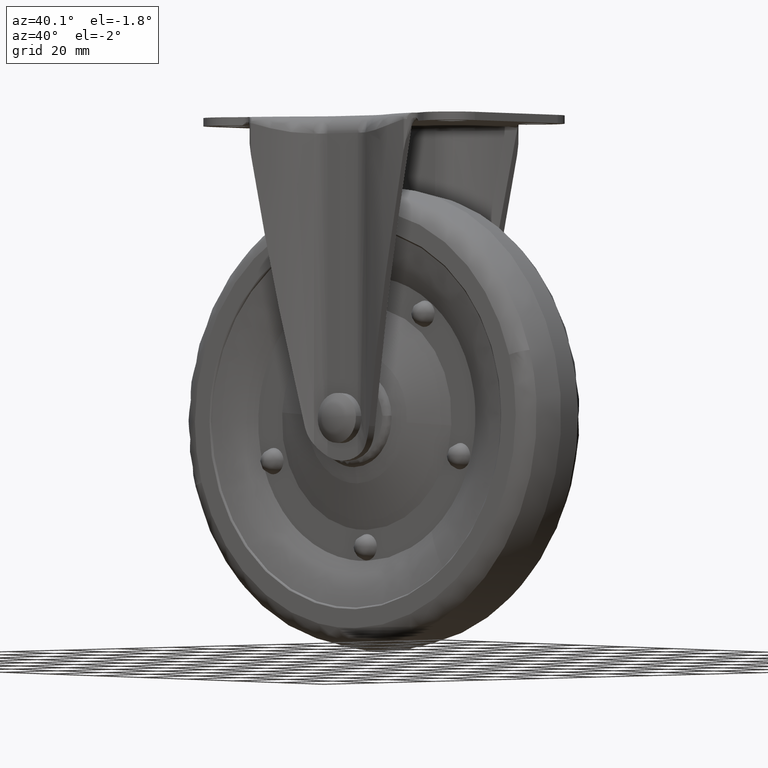
[diagram: clean part render]
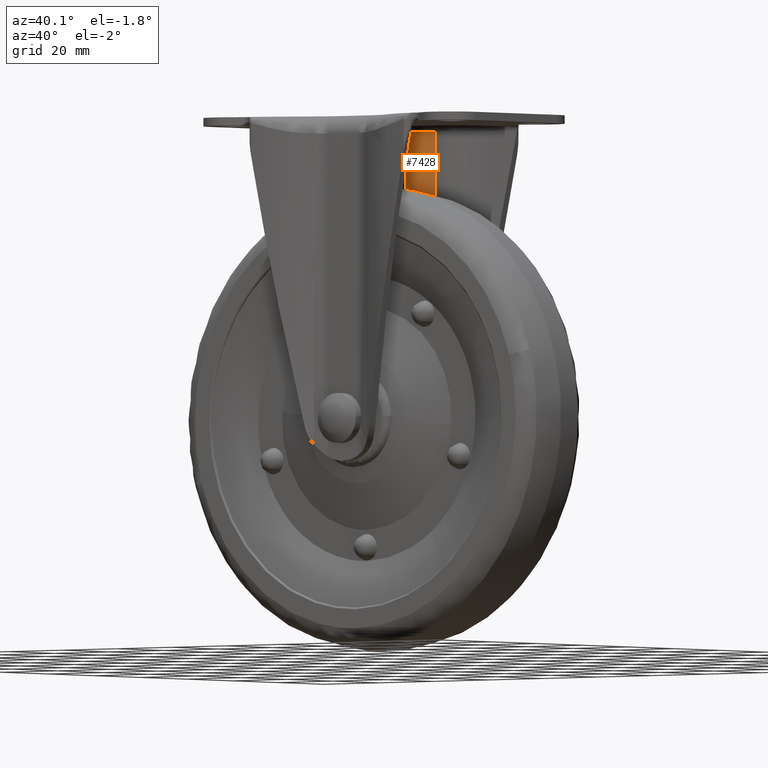
[diagram: same view with one face highlighted and labeled with its STEP entity id]
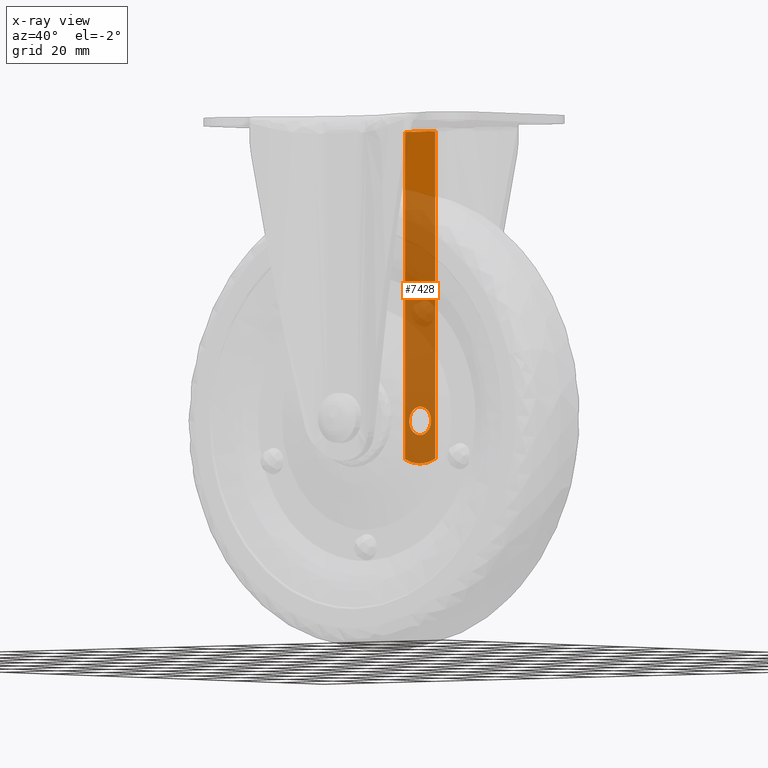
[diagram: x-ray of the same camera — body ghosted, the highlighted face saturated]
A machine part, auxiliary view. The second image highlights one B-rep face of the part: STEP entity #7428.
The next image is the same camera in x-ray: the body ghosted, the highlighted face saturated — about 82% of this face is hidden behind the body in this view.
In plain terms, the highlighted face is a freeform B-spline surface patch.
Its self-contained STEP definition (entity closure, byte-faithful):
#5286=CARTESIAN_POINT('',(3.999847692249458,15.750000000000000,-85.034906142821583));
#5287=VERTEX_POINT('',#5286);
#5288=CARTESIAN_POINT('',(0.0,15.750000000000000,-89.000000000000014));
#5289=VERTEX_POINT('',#5288);
#5290=CARTESIAN_POINT('',(3.999847692249459,15.750000000000005,-85.034906142821583));
#5291=CARTESIAN_POINT('',(3.965244841558949,15.750000000000004,-89.0));
#5292=CARTESIAN_POINT('',(0.0,15.750000000000000,-89.000000000000014));
#5300=(BOUNDED_CURVE()B_SPLINE_CURVE(2,(#5290,#5291,#5292),.UNSPECIFIED.,.F.,.U.)B_SPLINE_CURVE_WITH_KNOTS((3,3),(0.751539894371454,1.0),.UNSPECIFIED.)CURVE()GEOMETRIC_REPRESENTATION_ITEM()RATIONAL_B_SPLINE_CURVE((0.996414028016011,0.708910879662899,1.0))REPRESENTATION_ITEM(''));
#5301=EDGE_CURVE('',#5287,#5289,#5300,.T.);
#5342=CARTESIAN_POINT('',(-3.999847692249458,15.750000000000000,-84.965093857178417));
#5343=VERTEX_POINT('',#5342);
#5349=CARTESIAN_POINT('',(0.0,15.750000000000000,-89.000000000000014));
#5350=CARTESIAN_POINT('',(-4.000000000000000,15.750000000000009,-89.000000000000014));
#5351=CARTESIAN_POINT('',(-4.0,15.750000000000000,-85.0));
#5352=CARTESIAN_POINT('',(-4.0,15.750000000000002,-84.982546596303123));
#5353=CARTESIAN_POINT('',(-3.999847692249459,15.750000000000002,-84.965093857178417));
#5361=(BOUNDED_CURVE()B_SPLINE_CURVE(2,(#5349,#5350,#5351,#5352,#5353),.UNSPECIFIED.,.F.,.U.)B_SPLINE_CURVE_WITH_KNOTS((3,2,3),(0.0,0.250000000000000,0.251539894371454),.UNSPECIFIED.)CURVE()GEOMETRIC_REPRESENTATION_ITEM()RATIONAL_B_SPLINE_CURVE((1.0,0.707106781186548,1.0,0.998195901523648,0.996414028016011))REPRESENTATION_ITEM(''));
#5362=EDGE_CURVE('',#5289,#5343,#5361,.T.);
#5385=CARTESIAN_POINT('',(0.0,15.750000000000000,-81.0));
#5386=VERTEX_POINT('',#5385);
#5387=CARTESIAN_POINT('',(0.0,15.750000000000000,-81.0));
#5388=CARTESIAN_POINT('',(4.000000000000000,15.750000000000009,-81.0));
#5389=CARTESIAN_POINT('',(4.0,15.750000000000000,-85.0));
#5390=CARTESIAN_POINT('',(4.000000000000000,15.749999999999996,-85.017453403696877));
#5391=CARTESIAN_POINT('',(3.999847692249459,15.750000000000002,-85.034906142821583));
#5399=(BOUNDED_CURVE()B_SPLINE_CURVE(2,(#5387,#5388,#5389,#5390,#5391),.UNSPECIFIED.,.F.,.U.)B_SPLINE_CURVE_WITH_KNOTS((3,2,3),(0.500000000000000,0.750000000000000,0.751539894371454),.UNSPECIFIED.)CURVE()GEOMETRIC_REPRESENTATION_ITEM()RATIONAL_B_SPLINE_CURVE((1.0,0.707106781186548,1.0,0.998195901523649,0.996414028016011))REPRESENTATION_ITEM(''));
#5400=EDGE_CURVE('',#5386,#5287,#5399,.T.);
#5402=CARTESIAN_POINT('',(-3.999847692249459,15.750000000000002,-84.965093857178402));
#5403=CARTESIAN_POINT('',(-3.965244841558964,15.750000000000009,-81.0));
#5404=CARTESIAN_POINT('',(0.0,15.750000000000000,-81.0));
#5412=(BOUNDED_CURVE()B_SPLINE_CURVE(2,(#5402,#5403,#5404),.UNSPECIFIED.,.F.,.U.)B_SPLINE_CURVE_WITH_KNOTS((3,3),(0.251539894371454,0.500000000000000),.UNSPECIFIED.)CURVE()GEOMETRIC_REPRESENTATION_ITEM()RATIONAL_B_SPLINE_CURVE((0.996414028016012,0.708910879662899,1.0))REPRESENTATION_ITEM(''));
#5413=EDGE_CURVE('',#5343,#5386,#5412,.T.);
#6374=CARTESIAN_POINT('',(5.520442000000091,15.750000000000000,-95.654796305073205));
#6375=VERTEX_POINT('',#6374);
#6399=CARTESIAN_POINT('',(-5.520441999999920,15.750000000000000,-95.654796305073091));
#6400=VERTEX_POINT('',#6399);
#6401=CARTESIAN_POINT('',(-5.520441999999903,15.750000000000000,-95.654796305073063));
#6402=CARTESIAN_POINT('',(5.572925E-014,15.749999999999996,-98.515036350460718));
#6403=CARTESIAN_POINT('',(5.520442000000033,15.750000000000000,-95.654796305073091));
#6411=(BOUNDED_CURVE()B_SPLINE_CURVE(2,(#6401,#6402,#6403),.UNSPECIFIED.,.F.,.U.)CURVE()GEOMETRIC_REPRESENTATION_ITEM()QUASI_UNIFORM_CURVE()RATIONAL_B_SPLINE_CURVE((1.0,0.887899832175140,1.0))REPRESENTATION_ITEM(''));
#6412=EDGE_CURVE('',#6400,#6375,#6411,.T.);
#7254=CARTESIAN_POINT('',(5.520442000000000,15.750000000000000,-3.800000000000000));
#7255=VERTEX_POINT('',#7254);
#7269=CARTESIAN_POINT('',(5.520442000000091,15.750000000000000,-95.654796305073205));
#7270=CARTESIAN_POINT('',(5.520442000000000,15.750000000000000,-3.800000000000000));
#7271=QUASI_UNIFORM_CURVE('',1,(#7269,#7270),.UNSPECIFIED.,.F.,.U.);
#7272=EDGE_CURVE('',#6375,#7255,#7271,.T.);
#7292=CARTESIAN_POINT('',(-5.520441999999920,15.750000000000000,-3.800000000000000));
#7293=VERTEX_POINT('',#7292);
#7294=CARTESIAN_POINT('',(-5.520441999999920,15.750000000000000,-95.654796305073091));
#7295=CARTESIAN_POINT('',(-5.520441999999920,15.750000000000000,-3.800000000000000));
#7296=QUASI_UNIFORM_CURVE('',1,(#7294,#7295),.UNSPECIFIED.,.F.,.U.);
#7297=EDGE_CURVE('',#6400,#7293,#7296,.T.);
#7407=CARTESIAN_POINT('',(-6.071934134400544,15.750000000000000,0.855339735392937));
#7408=CARTESIAN_POINT('',(-6.071934134400544,15.750000000000000,-101.655340554183000));
#7409=CARTESIAN_POINT('',(6.071934430540301,15.750000000000000,0.855339735392937));
#7410=CARTESIAN_POINT('',(6.071934430540301,15.750000000000000,-101.655340554183000));
#7411=B_SPLINE_SURFACE_WITH_KNOTS('',1,1,((#7407,#7409),(#7408,#7410)),.UNSPECIFIED.,.F.,.F.,.U.,(2,2),(2,2),(0.0,102.510680289575900),(0.0,12.143868564940851),.UNSPECIFIED.);
#7412=ORIENTED_EDGE('',*,*,#7272,.T.);
#7413=CARTESIAN_POINT('',(5.520442000000000,15.750000000000000,-3.800000000000000));
#7414=CARTESIAN_POINT('',(-5.520441999999920,15.750000000000000,-3.800000000000000));
#7415=QUASI_UNIFORM_CURVE('',1,(#7413,#7414),.UNSPECIFIED.,.F.,.U.);
#7416=EDGE_CURVE('',#7255,#7293,#7415,.T.);
#7417=ORIENTED_EDGE('',*,*,#7416,.T.);
#7418=ORIENTED_EDGE('',*,*,#7297,.F.);
#7419=ORIENTED_EDGE('',*,*,#6412,.T.);
#7420=EDGE_LOOP('',(#7412,#7417,#7418,#7419));
#7421=FACE_OUTER_BOUND('',#7420,.T.);
#7422=ORIENTED_EDGE('',*,*,#5362,.T.);
#7423=ORIENTED_EDGE('',*,*,#5413,.T.);
#7424=ORIENTED_EDGE('',*,*,#5400,.T.);
#7425=ORIENTED_EDGE('',*,*,#5301,.T.);
#7426=EDGE_LOOP('',(#7422,#7423,#7424,#7425));
#7427=FACE_BOUND('',#7426,.T.);
#7428=ADVANCED_FACE('',(#7421,#7427),#7411,.T.);